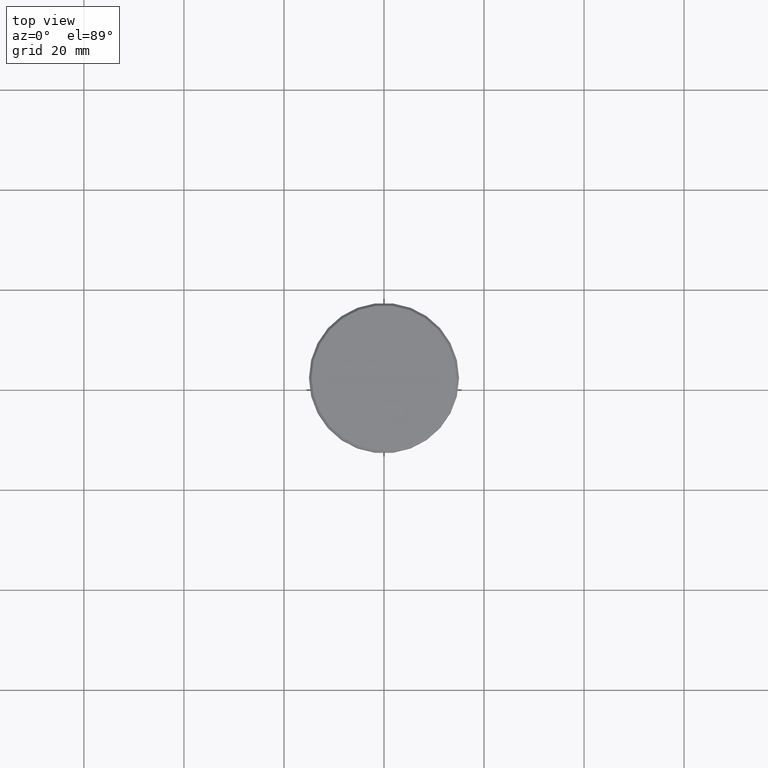
[diagram: clean part render]
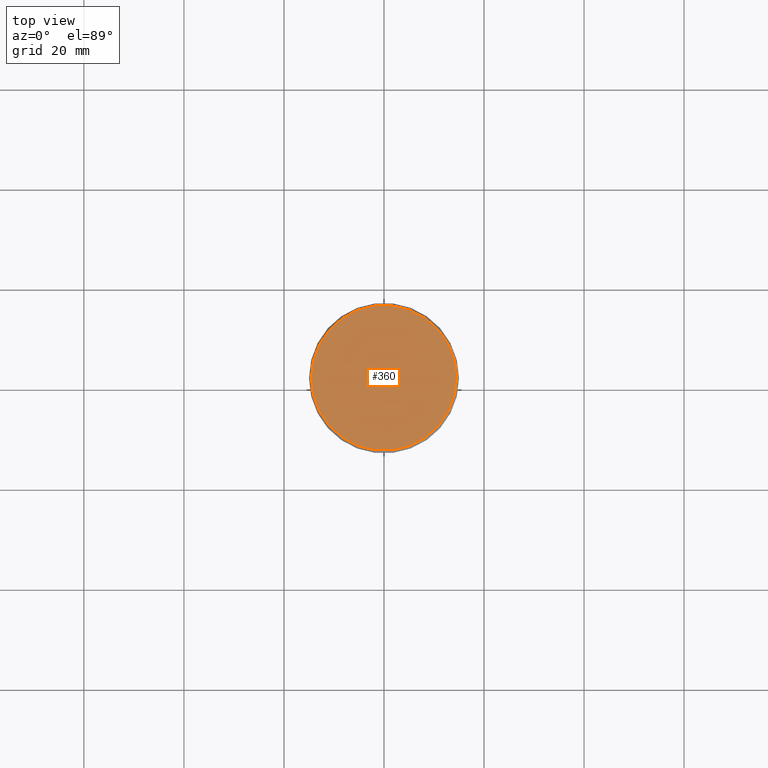
[diagram: same view with one face highlighted and labeled with its STEP entity id]
A machine part, top view. The second image highlights one B-rep face of the part: STEP entity #360.
In plain terms, the highlighted planar face has unit normal (0, -0, 1).
Its self-contained STEP definition (entity closure, byte-faithful):
#39 = DIRECTION ( 'NONE',  ( -0.000000000000000000, -0.000000000000000000, 1.000000000000000000 ) ) ;
#41 = EDGE_LOOP ( 'NONE', ( #1087, #523 ) ) ;
#86 = DIRECTION ( 'NONE',  ( 0.000000000000000000, -0.000000000000000000, 1.000000000000000000 ) ) ;
#93 = CARTESIAN_POINT ( 'NONE',  ( 0.000000000000000000, 0.000000000000000000, 0.000000000000000000 ) ) ;
#122 = DIRECTION ( 'NONE',  ( 1.000000000000000000, 0.000000000000000000, 0.000000000000000000 ) ) ;
#175 = FACE_OUTER_BOUND ( 'NONE', #41, .T. ) ;
#301 = AXIS2_PLACEMENT_3D ( 'NONE', #1139, #39, #122 ) ;
#307 = VERTEX_POINT ( 'NONE', #876 ) ;
#360 = ADVANCED_FACE ( 'NONE', ( #175 ), #902, .T. ) ;
#426 = DIRECTION ( 'NONE',  ( 1.000000000000000000, 0.000000000000000000, 0.000000000000000000 ) ) ;
#523 = ORIENTED_EDGE ( 'NONE', *, *, #1018, .T. ) ;
#692 = EDGE_CURVE ( 'NONE', #307, #988, #1166, .T. ) ;
#818 = CIRCLE ( 'NONE', #301, 14.50000000000001066 ) ;
#864 = AXIS2_PLACEMENT_3D ( 'NONE', #93, #86, #1101 ) ;
#876 = CARTESIAN_POINT ( 'NONE',  ( -14.50000000000001066, 0.000000000000000000, 0.000000000000000000 ) ) ;
#893 = CARTESIAN_POINT ( 'NONE',  ( 0.000000000000000000, 0.000000000000000000, 0.000000000000000000 ) ) ;
#902 = PLANE ( 'NONE',  #864 ) ;
#940 = CARTESIAN_POINT ( 'NONE',  ( 14.50000000000001066, 1.806354028742346591E-15, 0.000000000000000000 ) ) ;
#988 = VERTEX_POINT ( 'NONE', #940 ) ;
#991 = AXIS2_PLACEMENT_3D ( 'NONE', #893, #1152, #426 ) ;
#1018 = EDGE_CURVE ( 'NONE', #988, #307, #818, .T. ) ;
#1087 = ORIENTED_EDGE ( 'NONE', *, *, #692, .T. ) ;
#1101 = DIRECTION ( 'NONE',  ( 1.000000000000000000, 0.000000000000000000, 0.000000000000000000 ) ) ;
#1139 = CARTESIAN_POINT ( 'NONE',  ( 0.000000000000000000, 0.000000000000000000, 0.000000000000000000 ) ) ;
#1152 = DIRECTION ( 'NONE',  ( -0.000000000000000000, -0.000000000000000000, 1.000000000000000000 ) ) ;
#1166 = CIRCLE ( 'NONE', #991, 14.50000000000001066 ) ;